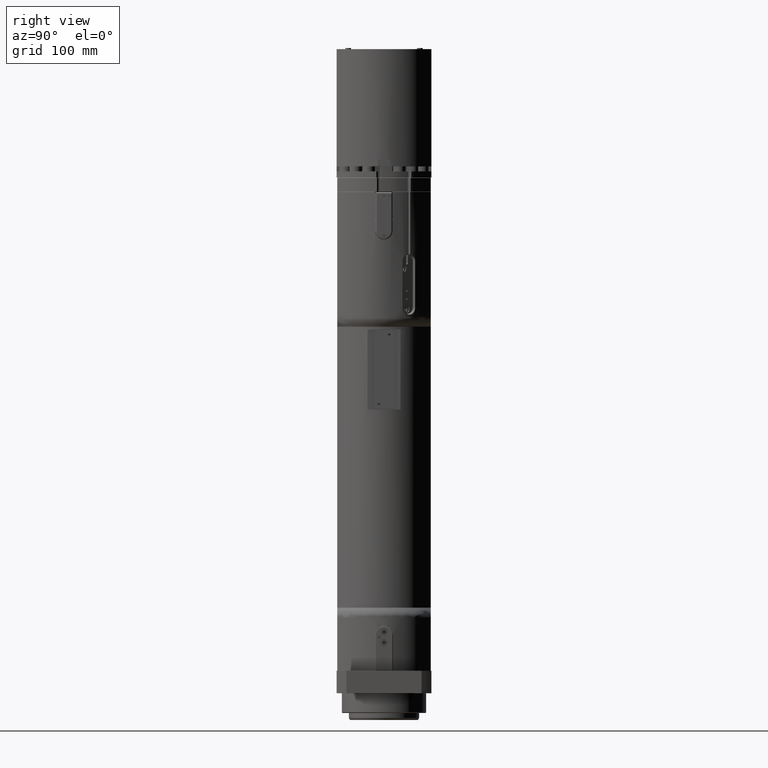
[diagram: clean part render]
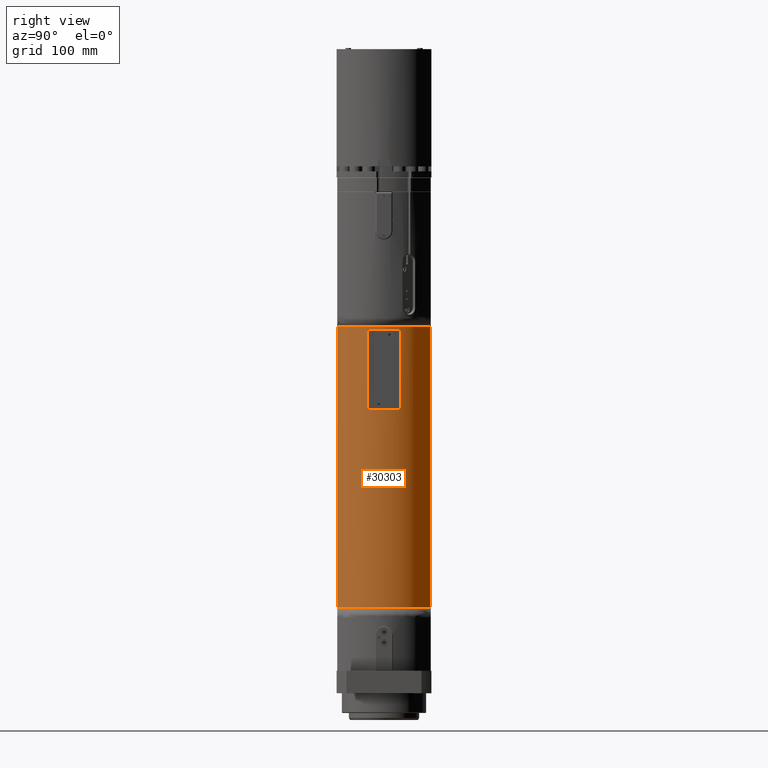
[diagram: same view with one face highlighted and labeled with its STEP entity id]
A machine part, right view. The second image highlights one B-rep face of the part: STEP entity #30303.
In plain terms, the highlighted cylindrical surface (partial cylindrical patch) has radius 71 mm, axis along (0, 0, 1).
Its self-contained STEP definition (entity closure, byte-faithful):
#1498=FACE_BOUND('',#4643,.T.);
#2849=FACE_OUTER_BOUND('',#4642,.T.);
#4642=EDGE_LOOP('',(#22265,#22266,#22267,#22268));
#4643=EDGE_LOOP('',(#22269,#22270,#22271,#22272));
#6620=LINE('',#51003,#9200);
#6622=LINE('',#51007,#9202);
#6772=LINE('',#51683,#9352);
#6777=LINE('',#51762,#9357);
#9200=VECTOR('',#35904,10.);
#9202=VECTOR('',#35906,10.);
#9352=VECTOR('',#36456,10.);
#9357=VECTOR('',#36471,10.);
#11319=CIRCLE('',#32252,71.);
#11326=CIRCLE('',#32269,71.);
#11332=CIRCLE('',#32293,71.);
#11333=CIRCLE('',#32295,71.);
#12930=VERTEX_POINT('',#51001);
#12931=VERTEX_POINT('',#51002);
#12932=VERTEX_POINT('',#51004);
#12933=VERTEX_POINT('',#51006);
#13116=VERTEX_POINT('',#51678);
#13117=VERTEX_POINT('',#51682);
#13122=VERTEX_POINT('',#51757);
#13123=VERTEX_POINT('',#51761);
#16128=EDGE_CURVE('',#12930,#12931,#6620,.T.);
#16130=EDGE_CURVE('',#12933,#12932,#6622,.T.);
#16400=EDGE_CURVE('',#13117,#13116,#6772,.T.);
#16412=EDGE_CURVE('',#13123,#13122,#6777,.T.);
#16427=EDGE_CURVE('',#13117,#13122,#11319,.T.);
#16449=EDGE_CURVE('',#13123,#13116,#11326,.T.);
#16485=EDGE_CURVE('',#12931,#12933,#11332,.T.);
#16486=EDGE_CURVE('',#12932,#12930,#11333,.T.);
#22265=ORIENTED_EDGE('',*,*,#16412,.T.);
#22266=ORIENTED_EDGE('',*,*,#16427,.F.);
#22267=ORIENTED_EDGE('',*,*,#16400,.T.);
#22268=ORIENTED_EDGE('',*,*,#16449,.F.);
#22269=ORIENTED_EDGE('',*,*,#16486,.T.);
#22270=ORIENTED_EDGE('',*,*,#16128,.T.);
#22271=ORIENTED_EDGE('',*,*,#16485,.T.);
#22272=ORIENTED_EDGE('',*,*,#16130,.T.);
#27737=CYLINDRICAL_SURFACE('',#32305,71.);
#30303=ADVANCED_FACE('',(#2849,#1498),#27737,.T.);
#32252=AXIS2_PLACEMENT_3D('',#51821,#36491,#36492);
#32269=AXIS2_PLACEMENT_3D('',#51907,#36533,#36534);
#32293=AXIS2_PLACEMENT_3D('',#52151,#36601,#36602);
#32295=AXIS2_PLACEMENT_3D('',#52153,#36605,#36606);
#32305=AXIS2_PLACEMENT_3D('',#52165,#36627,#36628);
#35904=DIRECTION('',(0.,0.,1.));
#35906=DIRECTION('',(0.,0.,-1.));
#36456=DIRECTION('',(0.,0.,1.));
#36471=DIRECTION('',(0.,0.,-1.));
#36491=DIRECTION('center_axis',(0.,0.,-1.));
#36492=DIRECTION('ref_axis',(1.,0.,0.));
#36533=DIRECTION('center_axis',(0.,0.,1.));
#36534=DIRECTION('ref_axis',(1.,0.,0.));
#36601=DIRECTION('center_axis',(0.,0.,1.));
#36602=DIRECTION('ref_axis',(1.,0.,0.));
#36605=DIRECTION('center_axis',(0.,0.,-1.));
#36606=DIRECTION('ref_axis',(1.,0.,0.));
#36627=DIRECTION('center_axis',(0.,0.,1.));
#36628=DIRECTION('ref_axis',(1.,0.,0.));
#51001=CARTESIAN_POINT('',(-23.4946802489415,-67.,404.));
#51002=CARTESIAN_POINT('',(-23.4946802489415,-67.,518.));
#51003=CARTESIAN_POINT('',(-23.4946802489415,-67.,122.));
#51004=CARTESIAN_POINT('',(23.4946802489415,-67.,404.));
#51006=CARTESIAN_POINT('',(23.4946802489415,-67.,518.));
#51007=CARTESIAN_POINT('',(23.4946802489415,-67.,122.));
#51678=CARTESIAN_POINT('',(66.5,-24.8746859276655,522.));
#51682=CARTESIAN_POINT('',(66.5,-24.8746859276655,122.));
#51683=CARTESIAN_POINT('',(66.5,-24.8746859276655,122.));
#51757=CARTESIAN_POINT('',(-66.5,-24.8746859276655,122.));
#51761=CARTESIAN_POINT('',(-66.5,-24.8746859276655,522.));
#51762=CARTESIAN_POINT('',(-66.5,-24.8746859276655,122.));
#51821=CARTESIAN_POINT('Origin',(0.,0.,122.));
#51907=CARTESIAN_POINT('Origin',(0.,0.,522.));
#52151=CARTESIAN_POINT('Origin',(0.,0.,518.));
#52153=CARTESIAN_POINT('Origin',(0.,0.,404.));
#52165=CARTESIAN_POINT('Origin',(0.,0.,122.));